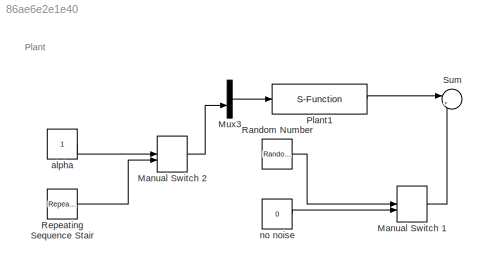
MODEL slx_86ae6e2e1e40
KIND model
CONFIG AbsTol = auto
CONFIG EnableMultiTasking = off
CONFIG FixedStep = auto
CONFIG MaxStep = auto
CONFIG MinStep = auto
CONFIG RelTol = 1e-3
CONFIG SampleTimeConstraint = Unconstrained
CONFIG Solver = VariableStepAuto
CONFIG SolverName = VariableStepAuto
CONFIG StartTime = 0.0
CONFIG StopTime = 10.0
BLOCK [ManualSwitch] Manual Switch 1
  CurrentSetting = 0
BLOCK [ManualSwitch] Manual Switch 2
BLOCK [Mux] Mux3
  DisplayOption = bar
  Inputs = 2
  Ports = [2, 1]
BLOCK [S-Function] Plant1
  EnableBusSupport = off
  FunctionName = LPV_Torsional
  Ports = [1, 1]
  SFcnIsStateOwnerBlock = off
  SFunctionDeploymentMode = off
BLOCK [RandomNumber] Random Number
  SampleTime = Ts
  Variance = 0.00001
BLOCK [Reference] Repeating Sequence Stair  REF=simulink/Sources/Repeating
Sequence
Stair
  Ports = [0, 1]
  SourceBlock = simulink/Sources/Repeating\nSequence\nStair
  SourceType = Repeating Sequence Stair
BLOCK [Sum] Sum
  IconShape = round
  InputSameDT = off
  Inputs = |++
  OutDataTypeStr = Inherit: Inherit via internal rule
  Ports = [2, 1]
  SaturateOnIntegerOverflow = off
BLOCK [Constant] alpha
BLOCK [Constant] no noise 
  Value = 0
ANNOTATION (root): Plant
LINE Manual Switch 1:1 -> Sum:2
LINE Manual Switch 2:1 -> Mux3:2
LINE Mux3:1 -> Plant1:1
LINE Plant1:1 -> Sum:1
LINE Random Number:1 -> Manual Switch 1:1
LINE Repeating Sequence Stair:1 -> Manual Switch 2:2
LINE alpha:1 -> Manual Switch 2:1
LINE no noise :1 -> Manual Switch 1:2
